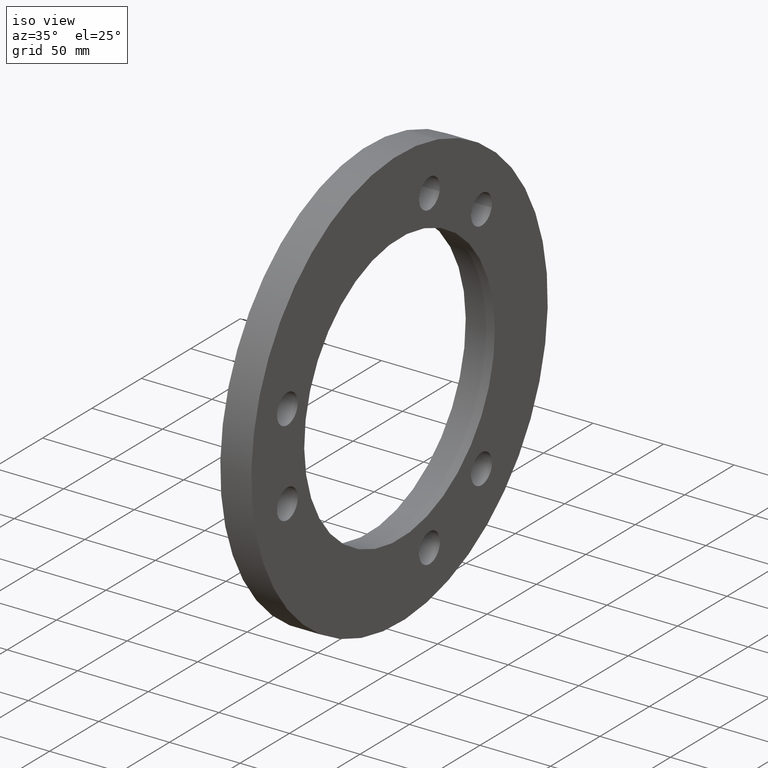
[diagram: clean part render]
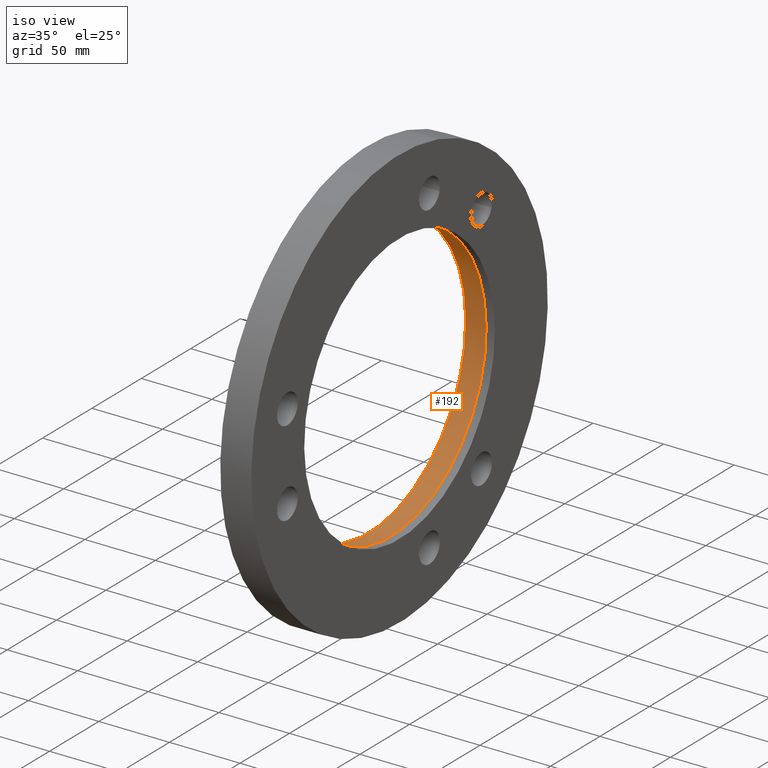
[diagram: same view with one face highlighted and labeled with its STEP entity id]
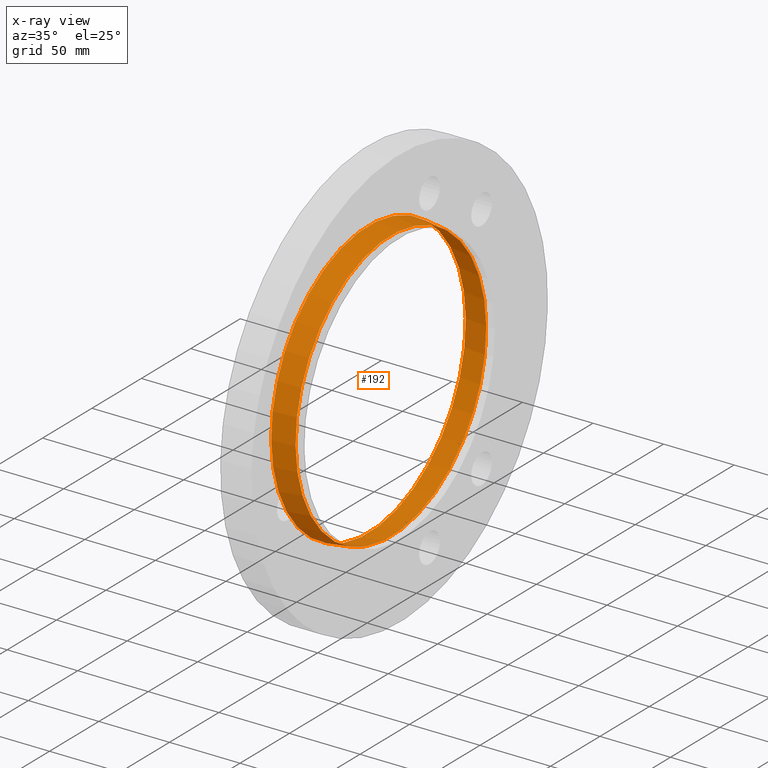
[diagram: x-ray of the same camera — body ghosted, the highlighted face saturated]
A machine part, iso view. The second image highlights one B-rep face of the part: STEP entity #192.
The next image is the same camera in x-ray: the body ghosted, the highlighted face saturated — about 0% of this face is hidden behind the body in this view.
In plain terms, the highlighted conical surface has half-angle 7.125 deg.
Its self-contained STEP definition (entity closure, byte-faithful):
#20=CONICAL_SURFACE('',#246,96.45,0.124354709204595);
#51=ORIENTED_EDGE('',*,*,#68,.T.);
#52=ORIENTED_EDGE('',*,*,#73,.F.);
#68=EDGE_CURVE('',#85,#85,#102,.T.);
#73=EDGE_CURVE('',#90,#90,#107,.T.);
#85=VERTEX_POINT('',#342);
#90=VERTEX_POINT('',#355);
#102=CIRCLE('',#237,98.435);
#107=CIRCLE('',#245,96.45);
#136=EDGE_LOOP('',(#51));
#137=EDGE_LOOP('',(#52));
#170=FACE_BOUND('',#136,.T.);
#171=FACE_BOUND('',#137,.T.);
#192=ADVANCED_FACE('',(#170,#171),#20,.F.);
#237=AXIS2_PLACEMENT_3D('',#341,#286,#287);
#245=AXIS2_PLACEMENT_3D('',#354,#302,#303);
#246=AXIS2_PLACEMENT_3D('',#356,#304,#305);
#286=DIRECTION('',(-1.,0.,0.));
#287=DIRECTION('',(0.,0.,1.));
#302=DIRECTION('',(-1.,0.,0.));
#303=DIRECTION('',(0.,0.,1.));
#304=DIRECTION('',(-1.,0.,0.));
#305=DIRECTION('',(0.,0.,1.));
#341=CARTESIAN_POINT('',(0.,0.,0.));
#342=CARTESIAN_POINT('',(0.,0.,98.435));
#354=CARTESIAN_POINT('',(15.880036816357,0.,0.));
#355=CARTESIAN_POINT('',(15.880036816357,0.,96.45));
#356=CARTESIAN_POINT('',(15.880036816357,0.,0.));